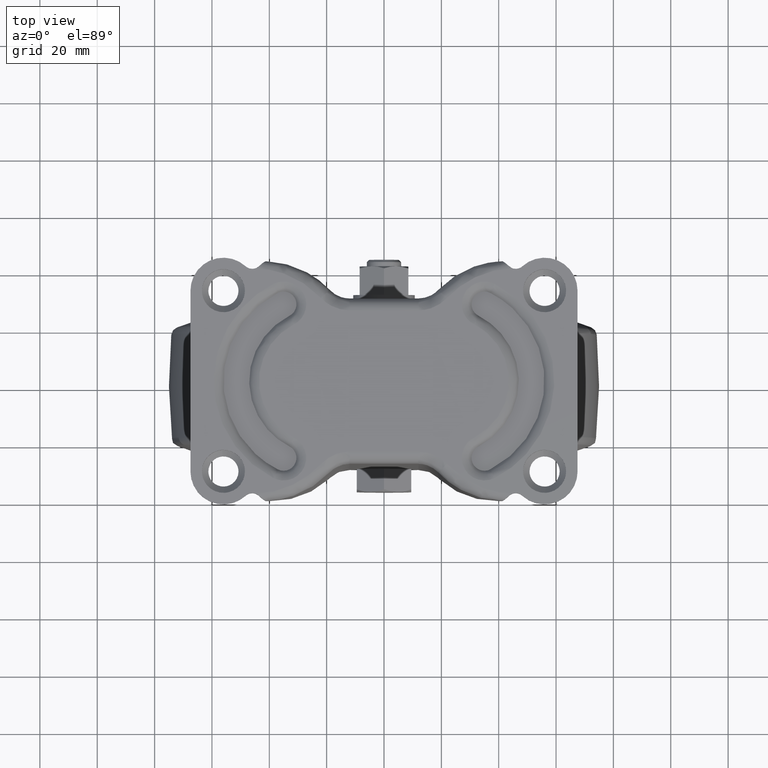
[diagram: clean part render]
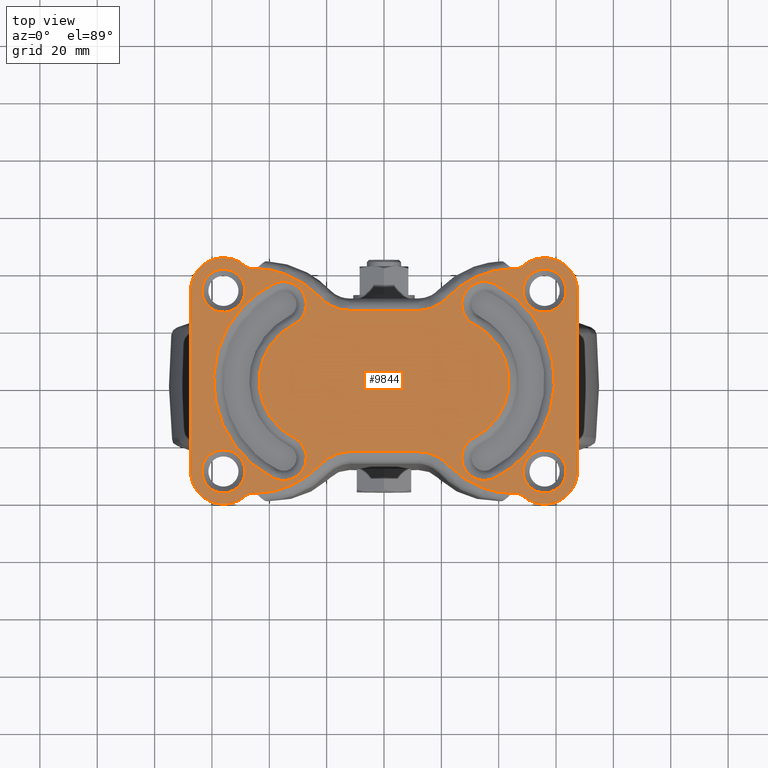
[diagram: same view with one face highlighted and labeled with its STEP entity id]
A machine part, top view. The second image highlights one B-rep face of the part: STEP entity #9844.
In plain terms, the highlighted face is a freeform B-spline surface patch.
Its self-contained STEP definition (entity closure, byte-faithful):
#4229=CARTESIAN_POINT('',(-56.457864046915283,38.986010988139299,-5.204170E-017));
#4230=VERTEX_POINT('',#4229);
#4231=CARTESIAN_POINT('',(-48.500000000000000,31.500000000000000,0.0));
#4232=VERTEX_POINT('',#4231);
#4233=CARTESIAN_POINT('',(-56.457864046915262,38.986010988139299,0.0));
#4234=CARTESIAN_POINT('',(-56.229145724941908,39.0,0.0));
#4235=CARTESIAN_POINT('',(-56.0,39.0,0.0));
#4236=CARTESIAN_POINT('',(-48.500000000000014,39.0,0.0));
#4237=CARTESIAN_POINT('',(-48.500000000000000,31.500000000000000,0.0));
#4245=(BOUNDED_CURVE()B_SPLINE_CURVE(2,(#4233,#4234,#4235,#4236,#4237),.UNSPECIFIED.,.F.,.U.)B_SPLINE_CURVE_WITH_KNOTS((3,2,3),(0.239332962232660,0.250000000000000,0.500000000000000),.UNSPECIFIED.)CURVE()GEOMETRIC_REPRESENTATION_ITEM()RATIONAL_B_SPLINE_CURVE((0.976072041653252,0.987502787892476,1.0,0.707106781186547,1.0))REPRESENTATION_ITEM(''));
#4246=EDGE_CURVE('',#4230,#4232,#4245,.T.);
#4255=CARTESIAN_POINT('',(-55.542135953084717,24.013989011860701,-5.204170E-017));
#4256=VERTEX_POINT('',#4255);
#4262=CARTESIAN_POINT('',(-48.500000000000000,31.500000000000000,0.0));
#4263=CARTESIAN_POINT('',(-48.500000000000007,24.444704498588617,0.0));
#4264=CARTESIAN_POINT('',(-55.542135953084717,24.013989011860698,0.0));
#4272=(BOUNDED_CURVE()B_SPLINE_CURVE(2,(#4262,#4263,#4264),.UNSPECIFIED.,.F.,.U.)B_SPLINE_CURVE_WITH_KNOTS((3,3),(0.500000000000000,0.739332962232660),.UNSPECIFIED.)CURVE()GEOMETRIC_REPRESENTATION_ITEM()RATIONAL_B_SPLINE_CURVE((1.0,0.719603993294071,0.976072041653251))REPRESENTATION_ITEM(''));
#4273=EDGE_CURVE('',#4232,#4256,#4272,.T.);
#4296=CARTESIAN_POINT('',(-63.500000000000000,31.500000000000000,0.0));
#4297=VERTEX_POINT('',#4296);
#4298=CARTESIAN_POINT('',(-63.500000000000000,31.500000000000000,0.0));
#4299=CARTESIAN_POINT('',(-63.499999999999993,38.555295501411386,0.0));
#4300=CARTESIAN_POINT('',(-56.457864046915269,38.986010988139306,0.0));
#4308=(BOUNDED_CURVE()B_SPLINE_CURVE(2,(#4298,#4299,#4300),.UNSPECIFIED.,.F.,.U.)B_SPLINE_CURVE_WITH_KNOTS((3,3),(0.0,0.239332962232660),.UNSPECIFIED.)CURVE()GEOMETRIC_REPRESENTATION_ITEM()RATIONAL_B_SPLINE_CURVE((1.0,0.719603993294071,0.976072041653252))REPRESENTATION_ITEM(''));
#4309=EDGE_CURVE('',#4297,#4230,#4308,.T.);
#4311=CARTESIAN_POINT('',(-55.542135953084717,24.013989011860698,0.0));
#4312=CARTESIAN_POINT('',(-55.770854275058092,24.000000000000007,0.0));
#4313=CARTESIAN_POINT('',(-56.0,24.0,0.0));
#4314=CARTESIAN_POINT('',(-63.499999999999993,24.0,0.0));
#4315=CARTESIAN_POINT('',(-63.500000000000000,31.500000000000000,0.0));
#4323=(BOUNDED_CURVE()B_SPLINE_CURVE(2,(#4311,#4312,#4313,#4314,#4315),.UNSPECIFIED.,.F.,.U.)B_SPLINE_CURVE_WITH_KNOTS((3,2,3),(0.739332962232660,0.750000000000000,1.0),.UNSPECIFIED.)CURVE()GEOMETRIC_REPRESENTATION_ITEM()RATIONAL_B_SPLINE_CURVE((0.976072041653251,0.987502787892476,1.0,0.707106781186547,1.0))REPRESENTATION_ITEM(''));
#4324=EDGE_CURVE('',#4256,#4297,#4323,.T.);
#4351=CARTESIAN_POINT('',(-56.457864046915283,-24.013989011860701,-5.204170E-017));
#4352=VERTEX_POINT('',#4351);
#4353=CARTESIAN_POINT('',(-48.500000000000000,-31.500000000000000,0.0));
#4354=VERTEX_POINT('',#4353);
#4355=CARTESIAN_POINT('',(-56.457864046915262,-24.013989011860691,0.0));
#4356=CARTESIAN_POINT('',(-56.229145724941908,-23.999999999999993,0.0));
#4357=CARTESIAN_POINT('',(-56.0,-24.0,0.0));
#4358=CARTESIAN_POINT('',(-48.500000000000014,-24.0,0.0));
#4359=CARTESIAN_POINT('',(-48.500000000000000,-31.500000000000000,0.0));
#4367=(BOUNDED_CURVE()B_SPLINE_CURVE(2,(#4355,#4356,#4357,#4358,#4359),.UNSPECIFIED.,.F.,.U.)B_SPLINE_CURVE_WITH_KNOTS((3,2,3),(0.239332962232660,0.250000000000000,0.500000000000000),.UNSPECIFIED.)CURVE()GEOMETRIC_REPRESENTATION_ITEM()RATIONAL_B_SPLINE_CURVE((0.976072041653252,0.987502787892476,1.0,0.707106781186547,1.0))REPRESENTATION_ITEM(''));
#4368=EDGE_CURVE('',#4352,#4354,#4367,.T.);
#4377=CARTESIAN_POINT('',(-55.542135953084717,-38.986010988139299,-5.204170E-017));
#4378=VERTEX_POINT('',#4377);
#4384=CARTESIAN_POINT('',(-48.500000000000000,-31.500000000000000,0.0));
#4385=CARTESIAN_POINT('',(-48.500000000000007,-38.555295501411386,0.0));
#4386=CARTESIAN_POINT('',(-55.542135953084717,-38.986010988139313,0.0));
#4394=(BOUNDED_CURVE()B_SPLINE_CURVE(2,(#4384,#4385,#4386),.UNSPECIFIED.,.F.,.U.)B_SPLINE_CURVE_WITH_KNOTS((3,3),(0.500000000000000,0.739332962232660),.UNSPECIFIED.)CURVE()GEOMETRIC_REPRESENTATION_ITEM()RATIONAL_B_SPLINE_CURVE((1.0,0.719603993294071,0.976072041653251))REPRESENTATION_ITEM(''));
#4395=EDGE_CURVE('',#4354,#4378,#4394,.T.);
#4418=CARTESIAN_POINT('',(-63.500000000000000,-31.500000000000000,0.0));
#4419=VERTEX_POINT('',#4418);
#4420=CARTESIAN_POINT('',(-63.500000000000000,-31.500000000000000,0.0));
#4421=CARTESIAN_POINT('',(-63.499999999999993,-24.444704498588600,0.0));
#4422=CARTESIAN_POINT('',(-56.457864046915269,-24.013989011860705,0.0));
#4430=(BOUNDED_CURVE()B_SPLINE_CURVE(2,(#4420,#4421,#4422),.UNSPECIFIED.,.F.,.U.)B_SPLINE_CURVE_WITH_KNOTS((3,3),(0.0,0.239332962232660),.UNSPECIFIED.)CURVE()GEOMETRIC_REPRESENTATION_ITEM()RATIONAL_B_SPLINE_CURVE((1.0,0.719603993294071,0.976072041653252))REPRESENTATION_ITEM(''));
#4431=EDGE_CURVE('',#4419,#4352,#4430,.T.);
#4433=CARTESIAN_POINT('',(-55.542135953084738,-38.986010988139299,0.0));
#4434=CARTESIAN_POINT('',(-55.770854275058099,-39.0,0.0));
#4435=CARTESIAN_POINT('',(-56.0,-39.0,0.0));
#4436=CARTESIAN_POINT('',(-63.499999999999993,-39.0,0.0));
#4437=CARTESIAN_POINT('',(-63.500000000000000,-31.500000000000000,0.0));
#4445=(BOUNDED_CURVE()B_SPLINE_CURVE(2,(#4433,#4434,#4435,#4436,#4437),.UNSPECIFIED.,.F.,.U.)B_SPLINE_CURVE_WITH_KNOTS((3,2,3),(0.739332962232660,0.750000000000000,1.0),.UNSPECIFIED.)CURVE()GEOMETRIC_REPRESENTATION_ITEM()RATIONAL_B_SPLINE_CURVE((0.976072041653252,0.987502787892476,1.0,0.707106781186547,1.0))REPRESENTATION_ITEM(''));
#4446=EDGE_CURVE('',#4378,#4419,#4445,.T.);
#4473=CARTESIAN_POINT('',(55.542135953084717,-24.013989011860701,-5.204170E-017));
#4474=VERTEX_POINT('',#4473);
#4475=CARTESIAN_POINT('',(63.500000000000000,-31.500000000000000,0.0));
#4476=VERTEX_POINT('',#4475);
#4477=CARTESIAN_POINT('',(55.542135953084724,-24.013989011860694,0.0));
#4478=CARTESIAN_POINT('',(55.770854275058092,-23.999999999999993,0.0));
#4479=CARTESIAN_POINT('',(56.0,-24.0,0.0));
#4480=CARTESIAN_POINT('',(63.499999999999993,-24.0,0.0));
#4481=CARTESIAN_POINT('',(63.500000000000000,-31.500000000000000,0.0));
#4489=(BOUNDED_CURVE()B_SPLINE_CURVE(2,(#4477,#4478,#4479,#4480,#4481),.UNSPECIFIED.,.F.,.U.)B_SPLINE_CURVE_WITH_KNOTS((3,2,3),(0.239332962232660,0.250000000000000,0.500000000000000),.UNSPECIFIED.)CURVE()GEOMETRIC_REPRESENTATION_ITEM()RATIONAL_B_SPLINE_CURVE((0.976072041653252,0.987502787892477,1.0,0.707106781186547,1.0))REPRESENTATION_ITEM(''));
#4490=EDGE_CURVE('',#4474,#4476,#4489,.T.);
#4499=CARTESIAN_POINT('',(56.457864046915283,-38.986010988139299,-5.204170E-017));
#4500=VERTEX_POINT('',#4499);
#4506=CARTESIAN_POINT('',(63.500000000000000,-31.500000000000000,0.0));
#4507=CARTESIAN_POINT('',(63.499999999999993,-38.555295501411386,0.0));
#4508=CARTESIAN_POINT('',(56.457864046915269,-38.986010988139313,0.0));
#4516=(BOUNDED_CURVE()B_SPLINE_CURVE(2,(#4506,#4507,#4508),.UNSPECIFIED.,.F.,.U.)B_SPLINE_CURVE_WITH_KNOTS((3,3),(0.500000000000000,0.739332962232660),.UNSPECIFIED.)CURVE()GEOMETRIC_REPRESENTATION_ITEM()RATIONAL_B_SPLINE_CURVE((1.0,0.719603993294071,0.976072041653252))REPRESENTATION_ITEM(''));
#4517=EDGE_CURVE('',#4476,#4500,#4516,.T.);
#4540=CARTESIAN_POINT('',(48.500000000000000,-31.500000000000000,0.0));
#4541=VERTEX_POINT('',#4540);
#4542=CARTESIAN_POINT('',(48.500000000000000,-31.500000000000000,0.0));
#4543=CARTESIAN_POINT('',(48.500000000000000,-24.444704498588607,0.0));
#4544=CARTESIAN_POINT('',(55.542135953084724,-24.013989011860694,0.0));
#4552=(BOUNDED_CURVE()B_SPLINE_CURVE(2,(#4542,#4543,#4544),.UNSPECIFIED.,.F.,.U.)B_SPLINE_CURVE_WITH_KNOTS((3,3),(0.0,0.239332962232660),.UNSPECIFIED.)CURVE()GEOMETRIC_REPRESENTATION_ITEM()RATIONAL_B_SPLINE_CURVE((1.0,0.719603993294071,0.976072041653252))REPRESENTATION_ITEM(''));
#4553=EDGE_CURVE('',#4541,#4474,#4552,.T.);
#4555=CARTESIAN_POINT('',(56.457864046915269,-38.986010988139313,0.0));
#4556=CARTESIAN_POINT('',(56.229145724941901,-39.0,0.0));
#4557=CARTESIAN_POINT('',(56.0,-39.0,0.0));
#4558=CARTESIAN_POINT('',(48.500000000000014,-39.0,0.0));
#4559=CARTESIAN_POINT('',(48.500000000000000,-31.500000000000000,0.0));
#4567=(BOUNDED_CURVE()B_SPLINE_CURVE(2,(#4555,#4556,#4557,#4558,#4559),.UNSPECIFIED.,.F.,.U.)B_SPLINE_CURVE_WITH_KNOTS((3,2,3),(0.739332962232660,0.750000000000000,1.0),.UNSPECIFIED.)CURVE()GEOMETRIC_REPRESENTATION_ITEM()RATIONAL_B_SPLINE_CURVE((0.976072041653252,0.987502787892476,1.0,0.707106781186547,1.0))REPRESENTATION_ITEM(''));
#4568=EDGE_CURVE('',#4500,#4541,#4567,.T.);
#5520=CARTESIAN_POINT('',(38.597904086651248,33.852036572994798,0.0));
#5521=VERTEX_POINT('',#5520);
#5536=CARTESIAN_POINT('',(38.597904414851598,-33.852036407228148,0.0));
#5537=VERTEX_POINT('',#5536);
#5551=CARTESIAN_POINT('',(38.597904086651248,33.852036572994798,0.0));
#5552=CARTESIAN_POINT('',(40.737438983461409,32.771761432411580,0.0));
#5553=CARTESIAN_POINT('',(43.792038547172851,30.845406504930480,0.0));
#5554=CARTESIAN_POINT('',(48.195783619028333,27.100797456150961,0.0));
#5555=CARTESIAN_POINT('',(52.218056250892232,22.629444185472629,0.0));
#5556=CARTESIAN_POINT('',(55.556753403287260,17.096534355813759,0.0));
#5557=CARTESIAN_POINT('',(57.595041749251671,11.915170039499239,0.0));
#5558=CARTESIAN_POINT('',(58.906096501231431,6.958357607303317,0.0));
#5559=CARTESIAN_POINT('',(59.577399735363237,1.422081956859567,0.0));
#5560=CARTESIAN_POINT('',(59.297570792142920,-4.473998754264481,0.0));
#5561=CARTESIAN_POINT('',(58.161621403890038,-10.258816748276329,0.0));
#5562=CARTESIAN_POINT('',(56.129405471726429,-15.919341510662059,0.0));
#5563=CARTESIAN_POINT('',(53.156161150733659,-21.147276858756779,0.0));
#5564=CARTESIAN_POINT('',(49.842978025234608,-25.347244170708539,0.0));
#5565=CARTESIAN_POINT('',(46.422033084689957,-28.717612249901201,0.0));
#5566=CARTESIAN_POINT('',(42.693377498375384,-31.569723190233610,0.0));
#5567=CARTESIAN_POINT('',(39.959331153931743,-33.164451242880652,0.0));
#5568=CARTESIAN_POINT('',(38.597904414851598,-33.852036407228148,0.0));
#5569=B_SPLINE_CURVE_WITH_KNOTS('',3,(#5551,#5552,#5553,#5554,#5555,#5556,#5557,#5558,#5559,#5560,#5561,#5562,#5563,#5564,#5565,#5566,#5567,#5568),.UNSPECIFIED.,.F.,.U.,(4,1,1,1,1,1,1,1,1,1,1,1,1,1,1,4),(0.000000065528610,7.190307134927934,10.785501899514291,17.322250925833199,25.166337065745839,30.068869539515180,33.990927650497170,40.527631843100743,46.737414182553557,51.639894446265103,58.176642837547483,64.713370051545894,69.615934941943564,74.191592660483280,79.094175262546997,83.669807241727597),.UNSPECIFIED.);
#5570=EDGE_CURVE('',#5521,#5537,#5569,.T.);
#5600=CARTESIAN_POINT('',(31.452240329807651,-19.704379285813701,0.0));
#5601=VERTEX_POINT('',#5600);
#5615=CARTESIAN_POINT('',(38.597904414851598,-33.852036407228148,0.0));
#5616=CARTESIAN_POINT('',(37.758997862071617,-34.276650035591970,0.0));
#5617=CARTESIAN_POINT('',(36.401690965355733,-34.679955020097204,0.0));
#5618=CARTESIAN_POINT('',(34.222270830706883,-34.736529436752349,0.0));
#5619=CARTESIAN_POINT('',(32.586829636577107,-34.392693799674923,0.0));
#5620=CARTESIAN_POINT('',(30.993744593134380,-33.653500236117928,0.0));
#5621=CARTESIAN_POINT('',(29.904848020482689,-32.878876661104037,0.0));
#5622=CARTESIAN_POINT('',(28.853031943181701,-31.816994993812550,0.0));
#5623=CARTESIAN_POINT('',(28.095011576465939,-30.715375623238309,0.0));
#5624=CARTESIAN_POINT('',(27.421005693826132,-29.200690389911589,0.0));
#5625=CARTESIAN_POINT('',(27.070534285855150,-27.604396828985688,0.0));
#5626=CARTESIAN_POINT('',(27.101144438058881,-25.811950947069629,0.0));
#5627=CARTESIAN_POINT('',(27.458570176482841,-24.255345546237020,0.0));
#5628=CARTESIAN_POINT('',(28.205008239014141,-22.591935265466070,0.0));
#5629=CARTESIAN_POINT('',(29.473057930351739,-20.962739732370480,0.0));
#5630=CARTESIAN_POINT('',(30.757625642035599,-20.054882762278861,0.0));
#5631=CARTESIAN_POINT('',(31.452240329807651,-19.704379285813701,0.0));
#5632=B_SPLINE_CURVE_WITH_KNOTS('',3,(#5615,#5616,#5617,#5618,#5619,#5620,#5621,#5622,#5623,#5624,#5625,#5626,#5627,#5628,#5629,#5630,#5631),.UNSPECIFIED.,.F.,.U.,(4,1,1,1,1,1,1,1,1,1,1,1,1,1,4),(0.000000650257256,2.820355079282585,4.181918416847676,6.516020665222367,7.780384418943818,9.433614108043573,10.503363206852679,12.253985127626750,13.421057077990110,15.463378653390251,17.116611454531220,18.769951041071671,20.228802466229361,22.562939760193370,24.896992175682371),.UNSPECIFIED.);
#5633=EDGE_CURVE('',#5537,#5601,#5632,.T.);
#5662=CARTESIAN_POINT('',(31.452239941177400,19.704379482101899,0.0));
#5663=VERTEX_POINT('',#5662);
#5664=CARTESIAN_POINT('',(31.452239941177400,19.704379482101899,0.0));
#5665=CARTESIAN_POINT('',(30.960295786280909,19.952762502331591,0.0));
#5666=CARTESIAN_POINT('',(30.028569478100401,20.552754876944299,0.0));
#5667=CARTESIAN_POINT('',(28.870664070819050,21.699586613043611,0.0));
#5668=CARTESIAN_POINT('',(27.895312585281431,23.163499097311728,0.0));
#5669=CARTESIAN_POINT('',(27.283946214596860,24.784467591132579,0.0));
#5670=CARTESIAN_POINT('',(27.075837957120822,26.334181151592539,0.0));
#5671=CARTESIAN_POINT('',(27.125665774939979,27.893024533766940,0.0));
#5672=CARTESIAN_POINT('',(27.466125335939630,29.357509476693789,0.0));
#5673=CARTESIAN_POINT('',(28.177820749561420,30.856510722481659,0.0));
#5674=CARTESIAN_POINT('',(29.228964979371540,32.307400690100188,0.0));
#5675=CARTESIAN_POINT('',(30.769590659763431,33.584051889590597,0.0));
#5676=CARTESIAN_POINT('',(32.532621285149091,34.362339953110833,0.0));
#5677=CARTESIAN_POINT('',(34.252096302484027,34.723851941007723,0.0));
#5678=CARTESIAN_POINT('',(36.277159868798726,34.721349618999241,0.0));
#5679=CARTESIAN_POINT('',(37.787904863368396,34.261825245741512,0.0));
#5680=CARTESIAN_POINT('',(38.597904086651248,33.852036572994798,0.0));
#5681=B_SPLINE_CURVE_WITH_KNOTS('',3,(#5664,#5665,#5666,#5667,#5668,#5669,#5670,#5671,#5672,#5673,#5674,#5675,#5676,#5677,#5678,#5679,#5680),.UNSPECIFIED.,.F.,.U.,(4,1,1,1,1,1,1,1,1,1,1,1,1,1,4),(0.000000781589939,1.653271058415324,3.306616954388606,4.862664190585708,6.905051523892752,8.461098240312097,9.530964110784300,11.573238288584999,12.934655525215470,14.490724198216780,16.922144612355250,18.867257634798801,20.228811013649409,22.173895326654979,24.896991351704411),.UNSPECIFIED.);
#5682=EDGE_CURVE('',#5663,#5521,#5681,.T.);
#5727=CARTESIAN_POINT('',(31.452240329807651,-19.704379285813701,0.0));
#5728=CARTESIAN_POINT('',(32.357905133967037,-19.246978322426180,0.0));
#5729=CARTESIAN_POINT('',(34.379210361111781,-18.044584996227218,0.0));
#5730=CARTESIAN_POINT('',(36.968871306719912,-15.880741759825121,0.0));
#5731=CARTESIAN_POINT('',(39.053174027540159,-13.481362278667920,0.0));
#5732=CARTESIAN_POINT('',(40.679490821378479,-11.054199477496720,0.0));
#5733=CARTESIAN_POINT('',(41.839302625553657,-8.719462936531336,0.0));
#5734=CARTESIAN_POINT('',(42.814338426237342,-5.966679222792449,0.0));
#5735=CARTESIAN_POINT('',(43.385435777809988,-3.357046945811054,0.0));
#5736=CARTESIAN_POINT('',(43.634670155865997,-0.318618464222600,0.0));
#5737=CARTESIAN_POINT('',(43.463384183157999,3.301666566485751,0.0));
#5738=CARTESIAN_POINT('',(42.518922070161253,7.211266215232127,0.0));
#5739=CARTESIAN_POINT('',(40.641110116371088,11.250044373268199,0.0));
#5740=CARTESIAN_POINT('',(38.454039576985437,14.310289894127470,0.0));
#5741=CARTESIAN_POINT('',(35.374878636227614,17.343833424645300,0.0));
#5742=CARTESIAN_POINT('',(33.037383640037092,18.904265894294731,0.0));
#5743=CARTESIAN_POINT('',(31.452239941177400,19.704379482101899,0.0));
#5744=B_SPLINE_CURVE_WITH_KNOTS('',3,(#5727,#5728,#5729,#5730,#5731,#5732,#5733,#5734,#5735,#5736,#5737,#5738,#5739,#5740,#5741,#5742,#5743),.UNSPECIFIED.,.F.,.U.,(4,1,1,1,1,1,1,1,1,1,1,1,1,1,4),(0.000000242567019,3.043863790968814,7.038921827800586,10.082827459234670,12.555985929068040,15.790138572760480,17.882770749721459,21.307211117276761,23.780334652603010,27.014377529062511,32.150881524986602,35.765520882428383,40.331361709295919,43.375233318887268,48.701992445577687),.UNSPECIFIED.);
#5745=EDGE_CURVE('',#5601,#5663,#5744,.T.);
#5773=CARTESIAN_POINT('',(-31.452239935293200,-19.704379554226250,0.0));
#5774=VERTEX_POINT('',#5773);
#5788=CARTESIAN_POINT('',(-31.452239941177400,19.704379482101849,0.0));
#5789=VERTEX_POINT('',#5788);
#5790=CARTESIAN_POINT('',(-31.452239941177400,19.704379482101849,0.0));
#5791=CARTESIAN_POINT('',(-33.207287475596388,18.818654659326029,0.0));
#5792=CARTESIAN_POINT('',(-36.002857670793780,16.899516285072380,0.0));
#5793=CARTESIAN_POINT('',(-39.357319993913549,13.234193098727880,0.0));
#5794=CARTESIAN_POINT('',(-41.353124455035022,9.894333056299674,0.0));
#5795=CARTESIAN_POINT('',(-42.595227529222463,6.696469825229639,0.0));
#5796=CARTESIAN_POINT('',(-43.383407558050017,3.552929448099639,0.0));
#5797=CARTESIAN_POINT('',(-43.684981195785383,0.062533688550539,0.0));
#5798=CARTESIAN_POINT('',(-43.378282775397707,-3.486105730672184,0.0));
#5799=CARTESIAN_POINT('',(-42.601490908547440,-6.764294336074835,0.0));
#5800=CARTESIAN_POINT('',(-41.434915994133782,-9.655539014678320,0.0));
#5801=CARTESIAN_POINT('',(-39.840898600554610,-12.403147511813881,0.0));
#5802=CARTESIAN_POINT('',(-38.127142109043312,-14.614539898570840,0.0));
#5803=CARTESIAN_POINT('',(-35.424120460192853,-17.300834222206550,0.0));
#5804=CARTESIAN_POINT('',(-33.150675898245062,-18.847224749286660,0.0));
#5805=CARTESIAN_POINT('',(-31.452239935293200,-19.704379554226250,0.0));
#5806=B_SPLINE_CURVE_WITH_KNOTS('',3,(#5790,#5791,#5792,#5793,#5794,#5795,#5796,#5797,#5798,#5799,#5800,#5801,#5802,#5803,#5804,#5805),.UNSPECIFIED.,.F.,.U.,(4,1,1,1,1,1,1,1,1,1,1,1,1,4),(0.000000265194451,5.897468876386121,10.082827575109951,14.838897396140240,17.502332541003010,20.355914999691169,24.541152376579319,27.965515488163540,31.009417618213408,34.624059033024103,37.287469140458157,40.521621845525061,42.994792523607593,48.701992918871220),.UNSPECIFIED.);
#5807=EDGE_CURVE('',#5789,#5774,#5806,.T.);
#5850=CARTESIAN_POINT('',(-38.597904058823012,33.852036517897801,0.0));
#5851=VERTEX_POINT('',#5850);
#5852=CARTESIAN_POINT('',(-38.597904058823012,33.852036517897801,0.0));
#5853=CARTESIAN_POINT('',(-37.932484697422240,34.188414369570772,0.0));
#5854=CARTESIAN_POINT('',(-36.505840909715353,34.671281044913641,0.0));
#5855=CARTESIAN_POINT('',(-34.477892411268179,34.761246479083972,0.0));
#5856=CARTESIAN_POINT('',(-32.656268050672622,34.401326599320562,0.0));
#5857=CARTESIAN_POINT('',(-31.276523807682260,33.812079612481540,0.0));
#5858=CARTESIAN_POINT('',(-29.896807987251581,32.892987572708691,0.0));
#5859=CARTESIAN_POINT('',(-28.608485864822111,31.592636454633350,0.0));
#5860=CARTESIAN_POINT('',(-27.680393101627651,29.935816479616712,0.0));
#5861=CARTESIAN_POINT('',(-27.188911429997759,28.248843010402229,0.0));
#5862=CARTESIAN_POINT('',(-27.061210814903550,26.885909566023390,0.0));
#5863=CARTESIAN_POINT('',(-27.183323500434540,25.331100184207980,0.0));
#5864=CARTESIAN_POINT('',(-27.659808707735070,23.599001998447889,0.0));
#5865=CARTESIAN_POINT('',(-28.634738174108762,21.967376799587370,0.0));
#5866=CARTESIAN_POINT('',(-29.951127945912472,20.615034609855702,0.0));
#5867=CARTESIAN_POINT('',(-30.873426180774089,19.996532208027372,0.0));
#5868=CARTESIAN_POINT('',(-31.452239941177400,19.704379482101849,0.0));
#5869=B_SPLINE_CURVE_WITH_KNOTS('',3,(#5852,#5853,#5854,#5855,#5856,#5857,#5858,#5859,#5860,#5861,#5862,#5863,#5864,#5865,#5866,#5867,#5868),.UNSPECIFIED.,.F.,.U.,(4,1,1,1,1,1,1,1,1,1,1,1,1,1,4),(0.000000650270238,2.236787539081153,4.473685907141785,6.029748575323264,7.780384161353094,8.947338947134830,10.989647932338761,13.226548932332321,14.588134521139001,16.241468392966180,17.311098483650181,19.256239815282189,21.590363392991868,22.951929570338091,24.896991351456670),.UNSPECIFIED.);
#5870=EDGE_CURVE('',#5851,#5789,#5869,.T.);
#5914=CARTESIAN_POINT('',(-38.597904584616799,-33.852036252331352,0.0));
#5915=VERTEX_POINT('',#5914);
#5929=CARTESIAN_POINT('',(-31.452239935293200,-19.704379554226250,0.0));
#5930=CARTESIAN_POINT('',(-30.612622980791080,-20.127572509174740,0.0));
#5931=CARTESIAN_POINT('',(-29.456155678840879,-21.000437922178101,0.0));
#5932=CARTESIAN_POINT('',(-28.107171100921921,-22.755896073116201,0.0));
#5933=CARTESIAN_POINT('',(-27.312823390419329,-24.554414655912719,0.0));
#5934=CARTESIAN_POINT('',(-27.021541198164311,-26.626111930922381,0.0));
#5935=CARTESIAN_POINT('',(-27.235001914184739,-28.638425384583890,0.0));
#5936=CARTESIAN_POINT('',(-27.898456130188549,-30.416085988290959,0.0));
#5937=CARTESIAN_POINT('',(-28.850923556370979,-31.818159348069731,0.0));
#5938=CARTESIAN_POINT('',(-29.903642707760731,-32.881008170092571,0.0));
#5939=CARTESIAN_POINT('',(-30.943294005208720,-33.611030804417531,0.0));
#5940=CARTESIAN_POINT('',(-32.315986825972267,-34.278832698588850,0.0));
#5941=CARTESIAN_POINT('',(-33.704958460096357,-34.652021076804012,0.0));
#5942=CARTESIAN_POINT('',(-35.263781489589761,-34.735867296010980,0.0));
#5943=CARTESIAN_POINT('',(-36.848178043236338,-34.558016006866147,0.0));
#5944=CARTESIAN_POINT('',(-37.961403710270062,-34.173820012063921,0.0));
#5945=CARTESIAN_POINT('',(-38.597904584616799,-33.852036252331352,0.0));
#5946=B_SPLINE_CURVE_WITH_KNOTS('',3,(#5929,#5930,#5931,#5932,#5933,#5934,#5935,#5936,#5937,#5938,#5939,#5940,#5941,#5942,#5943,#5944,#5945),.UNSPECIFIED.,.F.,.U.,(4,1,1,1,1,1,1,1,1,1,1,1,1,1,4),(0.000000650211703,2.820355045933336,4.279175207107219,6.613331756931110,8.655523728427479,10.503363082763000,12.643007484284571,14.296334755460190,15.560703725055189,17.116611252327171,18.089172865049228,20.131535524259629,21.395863424776081,22.757428593233062,24.896991881617531),.UNSPECIFIED.);
#5947=EDGE_CURVE('',#5774,#5915,#5946,.T.);
#5976=CARTESIAN_POINT('',(-38.597904584616799,-33.852036252331352,0.0));
#5977=CARTESIAN_POINT('',(-40.737410246385451,-32.771713866995810,0.0));
#5978=CARTESIAN_POINT('',(-43.792067919221360,-30.845450676401470,0.0));
#5979=CARTESIAN_POINT('',(-48.195790948024609,-27.100790548207769,0.0));
#5980=CARTESIAN_POINT('',(-51.559736952483348,-23.361050527732239,0.0));
#5981=CARTESIAN_POINT('',(-54.198880421878378,-19.347343895774710,0.0));
#5982=CARTESIAN_POINT('',(-56.557710824440733,-14.798246755389879,0.0));
#5983=CARTESIAN_POINT('',(-58.385294353652803,-9.638304735226068,0.0));
#5984=CARTESIAN_POINT('',(-59.329048181394157,-3.924255005348289,0.0));
#5985=CARTESIAN_POINT('',(-59.513347512041122,1.417995894598123,0.0));
#5986=CARTESIAN_POINT('',(-59.059094754142002,5.986403948320252,0.0));
#5987=CARTESIAN_POINT('',(-57.873857850657487,11.085744514569690,0.0));
#5988=CARTESIAN_POINT('',(-56.285783376650542,15.391690994048551,0.0));
#5989=CARTESIAN_POINT('',(-53.988205050689317,19.731237970702121,0.0));
#5990=CARTESIAN_POINT('',(-51.325676379120843,23.596064248248489,0.0));
#5991=CARTESIAN_POINT('',(-47.820290319179122,27.493331838346560,0.0));
#5992=CARTESIAN_POINT('',(-43.528453762303457,31.048243324454869,0.0));
#5993=CARTESIAN_POINT('',(-40.251102486669623,33.017132032601992,0.0));
#5994=CARTESIAN_POINT('',(-38.597904058823012,33.852036517897801,0.0));
#5995=B_SPLINE_CURVE_WITH_KNOTS('',3,(#5976,#5977,#5978,#5979,#5980,#5981,#5982,#5983,#5984,#5985,#5986,#5987,#5988,#5989,#5990,#5991,#5992,#5993,#5994),.UNSPECIFIED.,.F.,.U.,(4,1,1,1,1,1,1,1,1,1,1,1,1,1,1,1,4),(0.000000042973937,7.190307093389791,10.785501848484120,17.322250857542631,22.224802572504711,25.166336976745111,32.683531600611147,38.566648179795919,42.488531138037850,48.698364572970597,52.293577918606672,58.176642661398027,62.425520092518482,67.001234119218552,72.230630496179117,78.113612789534869,83.669806998011467),.UNSPECIFIED.);
#5996=EDGE_CURVE('',#5915,#5851,#5995,.T.);
#6139=CARTESIAN_POINT('',(-45.286515062644199,39.193457646801853,0.0));
#6140=VERTEX_POINT('',#6139);
#6160=CARTESIAN_POINT('',(-21.962988814587352,28.933892902993652,0.0));
#6161=VERTEX_POINT('',#6160);
#6162=CARTESIAN_POINT('',(-21.962988814587352,28.933892902993652,0.0));
#6163=CARTESIAN_POINT('',(-22.949987896272020,29.975119883583648,0.0));
#6164=CARTESIAN_POINT('',(-24.993756801069939,31.898372876360771,0.0));
#6165=CARTESIAN_POINT('',(-28.472291037960840,34.447372334859132,0.0));
#6166=CARTESIAN_POINT('',(-31.658726204864479,36.186098061404820,0.0));
#6167=CARTESIAN_POINT('',(-34.498640659220719,37.368885578357293,0.0));
#6168=CARTESIAN_POINT('',(-37.031399063497702,38.203486139783173,0.0));
#6169=CARTESIAN_POINT('',(-40.636545012743198,39.014767343340317,0.0));
#6170=CARTESIAN_POINT('',(-43.510505984521217,39.223157040847667,0.0));
#6171=CARTESIAN_POINT('',(-45.286515062644199,39.193457646801853,0.0));
#6172=B_SPLINE_CURVE_WITH_KNOTS('',3,(#6162,#6163,#6164,#6165,#6166,#6167,#6168,#6169,#6170,#6171),.UNSPECIFIED.,.F.,.U.,(4,1,1,1,1,1,1,4),(-0.000008232997946,4.304340034004291,8.403585816864499,12.912818351449520,15.167430012806021,17.627023951754030,20.906415227138059,26.235500857581560),.UNSPECIFIED.);
#6173=EDGE_CURVE('',#6161,#6140,#6172,.T.);
#6268=CARTESIAN_POINT('',(-11.998855098554341,24.650000000047651,0.0));
#6269=VERTEX_POINT('',#6268);
#6270=CARTESIAN_POINT('',(-11.998855098554341,24.650000000047701,0.0));
#6271=CARTESIAN_POINT('',(-17.901811766308210,24.650000000047694,0.0));
#6272=CARTESIAN_POINT('',(-21.962988814587330,28.933892902993669,0.0));
#6280=(BOUNDED_CURVE()B_SPLINE_CURVE(2,(#6270,#6271,#6272),.UNSPECIFIED.,.F.,.U.)CURVE()GEOMETRIC_REPRESENTATION_ITEM()QUASI_UNIFORM_CURVE()RATIONAL_B_SPLINE_CURVE((1.0,0.918692092121067,1.0))REPRESENTATION_ITEM(''));
#6281=EDGE_CURVE('',#6269,#6161,#6280,.T.);
#6328=CARTESIAN_POINT('',(11.998857618558160,24.650000999952351,0.0));
#6329=VERTEX_POINT('',#6328);
#6330=CARTESIAN_POINT('',(11.998857618558160,24.650000999952351,0.0));
#6331=CARTESIAN_POINT('',(-11.998855098554341,24.650000000047651,0.0));
#6332=QUASI_UNIFORM_CURVE('',1,(#6330,#6331),.UNSPECIFIED.,.F.,.U.);
#6333=EDGE_CURVE('',#6329,#6269,#6332,.T.);
#6376=CARTESIAN_POINT('',(21.962990449121101,28.933893572325399,0.0));
#6377=VERTEX_POINT('',#6376);
#6378=CARTESIAN_POINT('',(21.962990449121090,28.933893572325410,0.0));
#6379=CARTESIAN_POINT('',(17.901813677544510,24.650001245908875,0.0));
#6380=CARTESIAN_POINT('',(11.998857618558169,24.650000999952368,0.0));
#6388=(BOUNDED_CURVE()B_SPLINE_CURVE(2,(#6378,#6379,#6380),.UNSPECIFIED.,.F.,.U.)CURVE()GEOMETRIC_REPRESENTATION_ITEM()QUASI_UNIFORM_CURVE()RATIONAL_B_SPLINE_CURVE((1.0,0.918692106901595,1.0))REPRESENTATION_ITEM(''));
#6389=EDGE_CURVE('',#6377,#6329,#6388,.T.);
#6849=CARTESIAN_POINT('',(45.286516270299799,39.193457607020399,0.0));
#6850=VERTEX_POINT('',#6849);
#6851=CARTESIAN_POINT('',(45.286516270299799,39.193457607020399,0.0));
#6852=CARTESIAN_POINT('',(43.920313283318507,39.216038085563603,0.0));
#6853=CARTESIAN_POINT('',(41.457997329965927,39.088954015989160,0.0));
#6854=CARTESIAN_POINT('',(38.090988385518891,38.480336064162373,0.0));
#6855=CARTESIAN_POINT('',(35.136301430829803,37.617563547280177,0.0));
#6856=CARTESIAN_POINT('',(32.280072180818443,36.469998771690868,0.0));
#6857=CARTESIAN_POINT('',(29.671288710667259,35.111001065341561,0.0));
#6858=CARTESIAN_POINT('',(27.022225723035810,33.415625918748148,0.0));
#6859=CARTESIAN_POINT('',(24.487475542574231,31.436467968160649,0.0));
#6860=CARTESIAN_POINT('',(22.762043301632421,29.776777592984221,0.0));
#6861=CARTESIAN_POINT('',(21.962990449121101,28.933893572325399,0.0));
#6862=B_SPLINE_CURVE_WITH_KNOTS('',3,(#6851,#6852,#6853,#6854,#6855,#6856,#6857,#6858,#6859,#6860,#6861),.UNSPECIFIED.,.F.,.U.,(4,1,1,1,1,1,1,1,4),(0.000027209319114,4.099335715454821,7.378733587929890,10.248188196508620,13.322691785025929,16.602146396227379,19.061693195279599,22.751049770045789,26.235493437468751),.UNSPECIFIED.);
#6863=EDGE_CURVE('',#6850,#6377,#6862,.T.);
#7074=CARTESIAN_POINT('',(45.286516311112202,-39.193457599201800,0.0));
#7075=VERTEX_POINT('',#7074);
#7095=CARTESIAN_POINT('',(21.962990449121101,-28.933893572325399,0.0));
#7096=VERTEX_POINT('',#7095);
#7097=CARTESIAN_POINT('',(21.962990449121101,-28.933893572325399,0.0));
#7098=CARTESIAN_POINT('',(22.762033035696909,-29.776770286841391,0.0));
#7099=CARTESIAN_POINT('',(24.487488183714550,-31.436431188893248,0.0));
#7100=CARTESIAN_POINT('',(27.130132707747109,-33.499770940469261,0.0));
#7101=CARTESIAN_POINT('',(29.790468911632999,-35.178930885163297,0.0));
#7102=CARTESIAN_POINT('',(32.407052975531833,-36.520985684404337,0.0));
#7103=CARTESIAN_POINT('',(35.263211199403393,-37.668724539232947,0.0));
#7104=CARTESIAN_POINT('',(38.356396411835959,-38.549195222707873,0.0));
#7105=CARTESIAN_POINT('',(41.731738546917612,-39.109767808237443,0.0));
#7106=CARTESIAN_POINT('',(44.056924435434993,-39.213735582128614,0.0));
#7107=CARTESIAN_POINT('',(45.286516311112202,-39.193457599201800,0.0));
#7108=B_SPLINE_CURVE_WITH_KNOTS('',3,(#7097,#7098,#7099,#7100,#7101,#7102,#7103,#7104,#7105,#7106,#7107),.UNSPECIFIED.,.F.,.U.,(4,1,1,1,1,1,1,1,4),(-0.000008233003800,3.484408627557482,7.173776899164558,10.043283777523961,12.912818001795960,15.987325516466729,19.266719945263340,22.546111045161918,26.235500147188699),.UNSPECIFIED.);
#7109=EDGE_CURVE('',#7096,#7075,#7108,.T.);
#7204=CARTESIAN_POINT('',(11.998857618558160,-24.650000999952351,0.0));
#7205=VERTEX_POINT('',#7204);
#7206=CARTESIAN_POINT('',(11.998857618558160,-24.650000999952368,0.0));
#7207=CARTESIAN_POINT('',(17.901813677544510,-24.650001245908875,0.0));
#7208=CARTESIAN_POINT('',(21.962990449121090,-28.933893572325410,0.0));
#7216=(BOUNDED_CURVE()B_SPLINE_CURVE(2,(#7206,#7207,#7208),.UNSPECIFIED.,.F.,.U.)CURVE()GEOMETRIC_REPRESENTATION_ITEM()QUASI_UNIFORM_CURVE()RATIONAL_B_SPLINE_CURVE((1.0,0.918692106901595,1.0))REPRESENTATION_ITEM(''));
#7217=EDGE_CURVE('',#7205,#7096,#7216,.T.);
#7265=CARTESIAN_POINT('',(-11.998855098554341,-24.650000000047651,0.0));
#7266=VERTEX_POINT('',#7265);
#7267=CARTESIAN_POINT('',(-11.998855098554341,-24.650000000047651,0.0));
#7268=CARTESIAN_POINT('',(11.998857618558160,-24.650000999952351,0.0));
#7269=QUASI_UNIFORM_CURVE('',1,(#7267,#7268),.UNSPECIFIED.,.F.,.U.);
#7270=EDGE_CURVE('',#7266,#7205,#7269,.T.);
#7313=CARTESIAN_POINT('',(-21.962988814587298,-28.933892902993598,0.0));
#7314=VERTEX_POINT('',#7313);
#7315=CARTESIAN_POINT('',(-21.962988814587280,-28.933892902993609,0.0));
#7316=CARTESIAN_POINT('',(-17.901811766308175,-24.650000000047697,0.0));
#7317=CARTESIAN_POINT('',(-11.998855098554341,-24.650000000047701,0.0));
#7325=(BOUNDED_CURVE()B_SPLINE_CURVE(2,(#7315,#7316,#7317),.UNSPECIFIED.,.F.,.U.)CURVE()GEOMETRIC_REPRESENTATION_ITEM()QUASI_UNIFORM_CURVE()RATIONAL_B_SPLINE_CURVE((1.0,0.918692092121069,1.0))REPRESENTATION_ITEM(''));
#7326=EDGE_CURVE('',#7314,#7266,#7325,.T.);
#7769=CARTESIAN_POINT('',(-45.286515021836401,-39.193457654619600,0.0));
#7770=VERTEX_POINT('',#7769);
#7771=CARTESIAN_POINT('',(-45.286515021836401,-39.193457654619600,0.0));
#7772=CARTESIAN_POINT('',(-43.920331315240922,-39.216028486388417,0.0));
#7773=CARTESIAN_POINT('',(-41.457955283789460,-39.088971412864908,0.0));
#7774=CARTESIAN_POINT('',(-38.360367577521693,-38.528997139339843,0.0));
#7775=CARTESIAN_POINT('',(-35.395432096741338,-37.708394104302947,0.0));
#7776=CARTESIAN_POINT('',(-33.033367733045829,-36.794061450013423,0.0));
#7777=CARTESIAN_POINT('',(-30.393432530267820,-35.503068031201977,0.0));
#7778=CARTESIAN_POINT('',(-28.152281678336330,-34.185838568990782,0.0));
#7779=CARTESIAN_POINT('',(-25.103649960999672,-31.982884009359889,0.0));
#7780=CARTESIAN_POINT('',(-23.137766876058571,-30.173474038302690,0.0));
#7781=CARTESIAN_POINT('',(-21.962988814587298,-28.933892902993598,0.0));
#7782=B_SPLINE_CURVE_WITH_KNOTS('',3,(#7771,#7772,#7773,#7774,#7775,#7776,#7777,#7778,#7779,#7780,#7781),.UNSPECIFIED.,.F.,.U.,(4,1,1,1,1,1,1,1,4),(0.000027209310183,4.099335826451512,7.378733787722190,9.428376994307332,13.322692145767251,14.962448377475660,18.241856611848650,21.111376964993418,26.235494147863658),.UNSPECIFIED.);
#7783=EDGE_CURVE('',#7770,#7314,#7782,.T.);
#8952=CARTESIAN_POINT('',(-67.500000000000000,-31.500000000000000,0.0));
#8953=VERTEX_POINT('',#8952);
#8954=CARTESIAN_POINT('',(-48.291204069349803,-40.033726102470453,0.0));
#8955=VERTEX_POINT('',#8954);
#8956=CARTESIAN_POINT('',(-67.500000000000000,-31.500000000000000,0.0));
#8957=CARTESIAN_POINT('',(-67.500188806408232,-32.397557754171892,0.0));
#8958=CARTESIAN_POINT('',(-67.325305362424785,-33.881890217203193,0.0));
#8959=CARTESIAN_POINT('',(-66.711312616162388,-35.793863455531273,0.0));
#8960=CARTESIAN_POINT('',(-65.966560836783785,-37.316991428804322,0.0));
#8961=CARTESIAN_POINT('',(-64.971165522555680,-38.775490784277750,0.0));
#8962=CARTESIAN_POINT('',(-63.489770833219687,-40.331288607108753,0.0));
#8963=CARTESIAN_POINT('',(-61.748517473132253,-41.540971004878678,0.0));
#8964=CARTESIAN_POINT('',(-59.787360520646132,-42.412096855097673,0.0));
#8965=CARTESIAN_POINT('',(-58.177866108702823,-42.833328611698711,0.0));
#8966=CARTESIAN_POINT('',(-56.219513636238332,-43.053448035456192,0.0));
#8967=CARTESIAN_POINT('',(-54.346355186559343,-42.950798578873624,0.0));
#8968=CARTESIAN_POINT('',(-52.162355404563307,-42.407415596418531,0.0));
#8969=CARTESIAN_POINT('',(-50.169402044348942,-41.507911632392350,0.0));
#8970=CARTESIAN_POINT('',(-48.880321997277662,-40.566026225927757,0.0));
#8971=CARTESIAN_POINT('',(-48.291204069349803,-40.033726102470453,0.0));
#8972=B_SPLINE_CURVE_WITH_KNOTS('',3,(#8956,#8957,#8958,#8959,#8960,#8961,#8962,#8963,#8964,#8965,#8966,#8967,#8968,#8969,#8970,#8971),.UNSPECIFIED.,.F.,.U.,(4,1,1,1,1,1,1,1,1,1,1,1,1,4),(0.000000649397951,2.692630346296181,4.453293840690382,6.006794524125070,7.767433125860169,9.735214079246081,12.427956665179369,14.084808017508699,16.156207900845200,17.398964621781651,19.988137416212719,21.748782503491789,24.130832795248370,26.512762129161601),.UNSPECIFIED.);
#8973=EDGE_CURVE('',#8953,#8955,#8972,.T.);
#9030=CARTESIAN_POINT('',(-45.286515021836387,-39.193457654619557,0.0));
#9031=CARTESIAN_POINT('',(-46.998044850322081,-38.865572842929005,0.0));
#9032=CARTESIAN_POINT('',(-48.291204069349803,-40.033726102470439,0.0));
#9040=(BOUNDED_CURVE()B_SPLINE_CURVE(2,(#9030,#9031,#9032),.UNSPECIFIED.,.F.,.U.)CURVE()GEOMETRIC_REPRESENTATION_ITEM()QUASI_UNIFORM_CURVE()RATIONAL_B_SPLINE_CURVE((1.0,0.895177472579751,1.0))REPRESENTATION_ITEM(''));
#9041=EDGE_CURVE('',#7770,#8955,#9040,.T.);
#9177=CARTESIAN_POINT('',(48.291204772136602,-40.033725806168647,0.0));
#9178=VERTEX_POINT('',#9177);
#9179=CARTESIAN_POINT('',(48.291204772136602,-40.033725806168647,0.0));
#9180=CARTESIAN_POINT('',(46.998045729824376,-38.865573015330000,0.0));
#9181=CARTESIAN_POINT('',(45.286516311112209,-39.193457599201821,0.0));
#9189=(BOUNDED_CURVE()B_SPLINE_CURVE(2,(#9179,#9180,#9181),.UNSPECIFIED.,.F.,.U.)CURVE()GEOMETRIC_REPRESENTATION_ITEM()QUASI_UNIFORM_CURVE()RATIONAL_B_SPLINE_CURVE((1.0,0.895177518023511,1.0))REPRESENTATION_ITEM(''));
#9190=EDGE_CURVE('',#9178,#7075,#9189,.T.);
#9258=CARTESIAN_POINT('',(67.500000000000000,-31.500000000000000,0.0));
#9259=VERTEX_POINT('',#9258);
#9260=CARTESIAN_POINT('',(48.291204772136602,-40.033725806168647,0.0));
#9261=CARTESIAN_POINT('',(48.957134704113663,-40.635493851831278,0.0));
#9262=CARTESIAN_POINT('',(50.515853197041338,-41.742399753654603,0.0));
#9263=CARTESIAN_POINT('',(52.885447163608639,-42.661470783642152,0.0));
#9264=CARTESIAN_POINT('',(55.040349409963952,-43.005050413272059,0.0));
#9265=CARTESIAN_POINT('',(56.978583173416332,-43.015225469849597,0.0));
#9266=CARTESIAN_POINT('',(58.997243890749559,-42.677233469660067,0.0));
#9267=CARTESIAN_POINT('',(61.009678723954273,-41.920770369650917,0.0));
#9268=CARTESIAN_POINT('',(62.585002883451068,-40.977163304478680,0.0));
#9269=CARTESIAN_POINT('',(64.059518014083778,-39.775752259185573,0.0));
#9270=CARTESIAN_POINT('',(65.325324264051631,-38.346876870289748,0.0));
#9271=CARTESIAN_POINT('',(66.386673087686745,-36.559292423244067,0.0));
#9272=CARTESIAN_POINT('',(67.249252809703250,-34.330528465777107,0.0));
#9273=CARTESIAN_POINT('',(67.500502921869128,-32.604754138401390,0.0));
#9274=CARTESIAN_POINT('',(67.500000000000000,-31.500000000000000,0.0));
#9275=B_SPLINE_CURVE_WITH_KNOTS('',3,(#9260,#9261,#9262,#9263,#9264,#9265,#9266,#9267,#9268,#9269,#9270,#9271,#9272,#9273,#9274),.UNSPECIFIED.,.F.,.U.,(4,1,1,1,1,1,1,1,1,1,1,1,4),(0.000000386141775,2.692630077137363,5.696089089228515,7.560299117811741,9.217340392563948,11.495849452250329,13.670573338117780,15.638310412602120,16.984704998103080,19.366741778655751,21.334514897540650,23.198691047014041,26.512761804709619),.UNSPECIFIED.);
#9276=EDGE_CURVE('',#9178,#9259,#9275,.T.);
#9312=CARTESIAN_POINT('',(67.500000000000000,31.500000000000000,0.0));
#9313=VERTEX_POINT('',#9312);
#9314=CARTESIAN_POINT('',(67.500000000000000,31.500000000000000,0.0));
#9315=CARTESIAN_POINT('',(67.500000000000000,-31.500000000000000,0.0));
#9316=QUASI_UNIFORM_CURVE('',1,(#9314,#9315),.UNSPECIFIED.,.F.,.U.);
#9317=EDGE_CURVE('',#9313,#9259,#9316,.T.);
#9353=CARTESIAN_POINT('',(48.291205069349687,40.033726102470403,0.0));
#9354=VERTEX_POINT('',#9353);
#9355=CARTESIAN_POINT('',(67.500000000000000,31.500000000000000,0.0));
#9356=CARTESIAN_POINT('',(67.500643485427076,32.708332132161438,0.0));
#9357=CARTESIAN_POINT('',(67.181445851084092,34.710185724849246,0.0));
#9358=CARTESIAN_POINT('',(66.150956435283987,37.024812844663849,0.0));
#9359=CARTESIAN_POINT('',(65.053867294549804,38.663784753992971,0.0));
#9360=CARTESIAN_POINT('',(63.928792413229928,39.888583877563427,0.0));
#9361=CARTESIAN_POINT('',(62.340991880476452,41.170725604205110,0.0));
#9362=CARTESIAN_POINT('',(60.540506225538287,42.152356453201207,0.0));
#9363=CARTESIAN_POINT('',(58.618516690687443,42.739261938825827,0.0));
#9364=CARTESIAN_POINT('',(56.533503325724638,43.059842342724913,0.0));
#9365=CARTESIAN_POINT('',(54.411158996036882,42.981779287788967,0.0));
#9366=CARTESIAN_POINT('',(51.962168559948772,42.348897147282997,0.0));
#9367=CARTESIAN_POINT('',(49.992334952524843,41.395012324515257,0.0));
#9368=CARTESIAN_POINT('',(48.777896975363959,40.473401468229689,0.0));
#9369=CARTESIAN_POINT('',(48.291205069349687,40.033726102470403,0.0));
#9370=B_SPLINE_CURVE_WITH_KNOTS('',3,(#9355,#9356,#9357,#9358,#9359,#9360,#9361,#9362,#9363,#9364,#9365,#9366,#9367,#9368,#9369),.UNSPECIFIED.,.F.,.U.,(4,1,1,1,1,1,1,1,1,1,1,1,4),(0.000000393660585,3.624775326208209,6.006794158544473,7.560299003654247,9.528080299531833,10.977959899581339,13.670573125617411,15.638310168430751,16.984704732260258,19.988136794963761,21.955914715126220,24.545087612686189,26.512761385581669),.UNSPECIFIED.);
#9371=EDGE_CURVE('',#9313,#9354,#9370,.T.);
#9424=CARTESIAN_POINT('',(45.286516270299799,39.193457607020420,0.0));
#9425=CARTESIAN_POINT('',(46.998045967455674,38.865572948739690,0.0));
#9426=CARTESIAN_POINT('',(48.291205069349722,40.033726102470368,0.0));
#9434=(BOUNDED_CURVE()B_SPLINE_CURVE(2,(#9424,#9425,#9426),.UNSPECIFIED.,.F.,.U.)CURVE()GEOMETRIC_REPRESENTATION_ITEM()QUASI_UNIFORM_CURVE()RATIONAL_B_SPLINE_CURVE((1.0,0.895177488687821,1.0))REPRESENTATION_ITEM(''));
#9435=EDGE_CURVE('',#6850,#9354,#9434,.T.);
#9571=CARTESIAN_POINT('',(-48.291204772136503,40.033725806168597,0.0));
#9572=VERTEX_POINT('',#9571);
#9573=CARTESIAN_POINT('',(-48.291204772136503,40.033725806168597,0.0));
#9574=CARTESIAN_POINT('',(-46.998045067431285,38.865572822400445,0.0));
#9575=CARTESIAN_POINT('',(-45.286515062644199,39.193457646801853,0.0));
#9583=(BOUNDED_CURVE()B_SPLINE_CURVE(2,(#9573,#9574,#9575),.UNSPECIFIED.,.F.,.U.)CURVE()GEOMETRIC_REPRESENTATION_ITEM()QUASI_UNIFORM_CURVE()RATIONAL_B_SPLINE_CURVE((1.0,0.895177454665899,1.0))REPRESENTATION_ITEM(''));
#9584=EDGE_CURVE('',#9572,#6140,#9583,.T.);
#9652=CARTESIAN_POINT('',(-67.500000000000000,31.500000000000000,0.0));
#9653=VERTEX_POINT('',#9652);
#9654=CARTESIAN_POINT('',(-48.291204772136503,40.033725806168597,0.0));
#9655=CARTESIAN_POINT('',(-48.854710015750989,40.542876746482762,0.0));
#9656=CARTESIAN_POINT('',(-49.943541868308998,41.345944268686097,0.0));
#9657=CARTESIAN_POINT('',(-51.867038433441067,42.298939475764392,0.0));
#9658=CARTESIAN_POINT('',(-54.101943505050741,42.941476357637640,0.0));
#9659=CARTESIAN_POINT('',(-56.428547065441400,43.068870900550372,0.0));
#9660=CARTESIAN_POINT('',(-58.655997329126002,42.747109883789470,0.0));
#9661=CARTESIAN_POINT('',(-60.436637127916171,42.167860332442800,0.0));
#9662=CARTESIAN_POINT('',(-62.093426634692761,41.302881161315653,0.0));
#9663=CARTESIAN_POINT('',(-63.828521490909992,40.038948947413779,0.0));
#9664=CARTESIAN_POINT('',(-65.344388000610621,38.358584075891187,0.0));
#9665=CARTESIAN_POINT('',(-66.407453467156529,36.491791110198577,0.0));
#9666=CARTESIAN_POINT('',(-67.244013037166027,34.330461114383517,0.0));
#9667=CARTESIAN_POINT('',(-67.500656439307122,32.673828714358372,0.0));
#9668=CARTESIAN_POINT('',(-67.500000000000000,31.500000000000000,0.0));
#9669=B_SPLINE_CURVE_WITH_KNOTS('',3,(#9654,#9655,#9656,#9657,#9658,#9659,#9660,#9661,#9662,#9663,#9664,#9665,#9666,#9667,#9668),.UNSPECIFIED.,.F.,.U.,(4,1,1,1,1,1,1,1,1,1,1,1,4),(0.000000385907853,2.278361284962696,4.039032437584556,6.421060988834260,9.217340392421860,10.977960068622901,13.152922280137860,14.809814774030110,16.570451844633428,19.573874045430191,21.541648767850781,22.991565392520702,26.512761804710479),.UNSPECIFIED.);
#9670=EDGE_CURVE('',#9572,#9653,#9669,.T.);
#9706=CARTESIAN_POINT('',(-67.500000000000000,-31.500000000000000,0.0));
#9707=CARTESIAN_POINT('',(-67.500000000000000,31.500000000000000,0.0));
#9708=QUASI_UNIFORM_CURVE('',1,(#9706,#9707),.UNSPECIFIED.,.F.,.U.);
#9709=EDGE_CURVE('',#8953,#9653,#9708,.T.);
#9721=CARTESIAN_POINT('',(-74.243249738343820,47.288461530242898,0.0));
#9722=CARTESIAN_POINT('',(74.243253359325976,47.288461530242898,0.0));
#9723=CARTESIAN_POINT('',(-74.243249738343820,-47.288459224113787,0.0));
#9724=CARTESIAN_POINT('',(74.243253359325976,-47.288459224113787,0.0));
#9725=B_SPLINE_SURFACE_WITH_KNOTS('',1,1,((#9721,#9723),(#9722,#9724)),.UNSPECIFIED.,.F.,.F.,.U.,(2,2),(2,2),(0.0,148.486503097669810),(0.0,94.576920754356692),.UNSPECIFIED.);
#9726=ORIENTED_EDGE('',*,*,#9041,.F.);
#9727=ORIENTED_EDGE('',*,*,#7783,.T.);
#9728=ORIENTED_EDGE('',*,*,#7326,.T.);
#9729=ORIENTED_EDGE('',*,*,#7270,.T.);
#9730=ORIENTED_EDGE('',*,*,#7217,.T.);
#9731=ORIENTED_EDGE('',*,*,#7109,.T.);
#9732=ORIENTED_EDGE('',*,*,#9190,.F.);
#9733=ORIENTED_EDGE('',*,*,#9276,.T.);
#9734=ORIENTED_EDGE('',*,*,#9317,.F.);
#9735=ORIENTED_EDGE('',*,*,#9371,.T.);
#9736=ORIENTED_EDGE('',*,*,#9435,.F.);
#9737=ORIENTED_EDGE('',*,*,#6863,.T.);
#9738=ORIENTED_EDGE('',*,*,#6389,.T.);
#9739=ORIENTED_EDGE('',*,*,#6333,.T.);
#9740=ORIENTED_EDGE('',*,*,#6281,.T.);
#9741=ORIENTED_EDGE('',*,*,#6173,.T.);
#9742=ORIENTED_EDGE('',*,*,#9584,.F.);
#9743=ORIENTED_EDGE('',*,*,#9670,.T.);
#9744=ORIENTED_EDGE('',*,*,#9709,.F.);
#9745=ORIENTED_EDGE('',*,*,#8973,.T.);
#9746=EDGE_LOOP('',(#9726,#9727,#9728,#9729,#9730,#9731,#9732,#9733,#9734,#9735,#9736,#9737,#9738,#9739,#9740,#9741,#9742,#9743,#9744,#9745));
#9747=FACE_OUTER_BOUND('',#9746,.T.);
#9748=ORIENTED_EDGE('',*,*,#5633,.T.);
#9749=ORIENTED_EDGE('',*,*,#5745,.T.);
#9750=ORIENTED_EDGE('',*,*,#5682,.T.);
#9751=ORIENTED_EDGE('',*,*,#5570,.T.);
#9752=EDGE_LOOP('',(#9748,#9749,#9750,#9751));
#9753=FACE_BOUND('',#9752,.T.);
#9754=ORIENTED_EDGE('',*,*,#5947,.T.);
#9755=ORIENTED_EDGE('',*,*,#5996,.T.);
#9756=ORIENTED_EDGE('',*,*,#5870,.T.);
#9757=ORIENTED_EDGE('',*,*,#5807,.T.);
#9758=EDGE_LOOP('',(#9754,#9755,#9756,#9757));
#9759=FACE_BOUND('',#9758,.T.);
#9760=ORIENTED_EDGE('',*,*,#4517,.T.);
#9761=ORIENTED_EDGE('',*,*,#4568,.T.);
#9762=ORIENTED_EDGE('',*,*,#4553,.T.);
#9763=ORIENTED_EDGE('',*,*,#4490,.T.);
#9764=EDGE_LOOP('',(#9760,#9761,#9762,#9763));
#9765=FACE_BOUND('',#9764,.T.);
#9766=CARTESIAN_POINT('',(63.500000000000000,31.500000000000000,0.0));
#9767=VERTEX_POINT('',#9766);
#9768=CARTESIAN_POINT('',(56.457864046915283,24.013989011860701,-5.204170E-017));
#9769=VERTEX_POINT('',#9768);
#9770=CARTESIAN_POINT('',(63.500000000000000,31.500000000000000,0.0));
#9771=CARTESIAN_POINT('',(63.499999999999993,24.444704498588614,0.0));
#9772=CARTESIAN_POINT('',(56.457864046915269,24.013989011860694,0.0));
#9780=(BOUNDED_CURVE()B_SPLINE_CURVE(2,(#9770,#9771,#9772),.UNSPECIFIED.,.F.,.U.)B_SPLINE_CURVE_WITH_KNOTS((3,3),(0.500000000000000,0.739332962232660),.UNSPECIFIED.)CURVE()GEOMETRIC_REPRESENTATION_ITEM()RATIONAL_B_SPLINE_CURVE((1.0,0.719603993294071,0.976072041653252))REPRESENTATION_ITEM(''));
#9781=EDGE_CURVE('',#9767,#9769,#9780,.T.);
#9782=ORIENTED_EDGE('',*,*,#9781,.T.);
#9783=CARTESIAN_POINT('',(48.500000000000000,31.500000000000000,0.0));
#9784=VERTEX_POINT('',#9783);
#9785=CARTESIAN_POINT('',(56.457864046915269,24.013989011860694,0.0));
#9786=CARTESIAN_POINT('',(56.229145724941901,23.999999999999996,0.0));
#9787=CARTESIAN_POINT('',(56.0,24.0,0.0));
#9788=CARTESIAN_POINT('',(48.500000000000014,24.0,0.0));
#9789=CARTESIAN_POINT('',(48.500000000000000,31.500000000000000,0.0));
#9797=(BOUNDED_CURVE()B_SPLINE_CURVE(2,(#9785,#9786,#9787,#9788,#9789),.UNSPECIFIED.,.F.,.U.)B_SPLINE_CURVE_WITH_KNOTS((3,2,3),(0.739332962232660,0.750000000000000,1.0),.UNSPECIFIED.)CURVE()GEOMETRIC_REPRESENTATION_ITEM()RATIONAL_B_SPLINE_CURVE((0.976072041653252,0.987502787892476,1.0,0.707106781186547,1.0))REPRESENTATION_ITEM(''));
#9798=EDGE_CURVE('',#9769,#9784,#9797,.T.);
#9799=ORIENTED_EDGE('',*,*,#9798,.T.);
#9800=CARTESIAN_POINT('',(55.542135953084717,38.986010988139299,-5.204170E-017));
#9801=VERTEX_POINT('',#9800);
#9802=CARTESIAN_POINT('',(48.500000000000000,31.500000000000000,0.0));
#9803=CARTESIAN_POINT('',(48.500000000000000,38.555295501411386,0.0));
#9804=CARTESIAN_POINT('',(55.542135953084724,38.986010988139313,0.0));
#9812=(BOUNDED_CURVE()B_SPLINE_CURVE(2,(#9802,#9803,#9804),.UNSPECIFIED.,.F.,.U.)B_SPLINE_CURVE_WITH_KNOTS((3,3),(0.0,0.239332962232660),.UNSPECIFIED.)CURVE()GEOMETRIC_REPRESENTATION_ITEM()RATIONAL_B_SPLINE_CURVE((1.0,0.719603993294071,0.976072041653252))REPRESENTATION_ITEM(''));
#9813=EDGE_CURVE('',#9784,#9801,#9812,.T.);
#9814=ORIENTED_EDGE('',*,*,#9813,.T.);
#9815=CARTESIAN_POINT('',(55.542135953084724,38.986010988139313,0.0));
#9816=CARTESIAN_POINT('',(55.770854275058092,39.0,0.0));
#9817=CARTESIAN_POINT('',(56.0,39.0,0.0));
#9818=CARTESIAN_POINT('',(63.499999999999993,39.0,0.0));
#9819=CARTESIAN_POINT('',(63.500000000000000,31.500000000000000,0.0));
#9827=(BOUNDED_CURVE()B_SPLINE_CURVE(2,(#9815,#9816,#9817,#9818,#9819),.UNSPECIFIED.,.F.,.U.)B_SPLINE_CURVE_WITH_KNOTS((3,2,3),(0.239332962232660,0.250000000000000,0.500000000000000),.UNSPECIFIED.)CURVE()GEOMETRIC_REPRESENTATION_ITEM()RATIONAL_B_SPLINE_CURVE((0.976072041653252,0.987502787892476,1.0,0.707106781186547,1.0))REPRESENTATION_ITEM(''));
#9828=EDGE_CURVE('',#9801,#9767,#9827,.T.);
#9829=ORIENTED_EDGE('',*,*,#9828,.T.);
#9830=EDGE_LOOP('',(#9782,#9799,#9814,#9829));
#9831=FACE_BOUND('',#9830,.T.);
#9832=ORIENTED_EDGE('',*,*,#4395,.T.);
#9833=ORIENTED_EDGE('',*,*,#4446,.T.);
#9834=ORIENTED_EDGE('',*,*,#4431,.T.);
#9835=ORIENTED_EDGE('',*,*,#4368,.T.);
#9836=EDGE_LOOP('',(#9832,#9833,#9834,#9835));
#9837=FACE_BOUND('',#9836,.T.);
#9838=ORIENTED_EDGE('',*,*,#4273,.T.);
#9839=ORIENTED_EDGE('',*,*,#4324,.T.);
#9840=ORIENTED_EDGE('',*,*,#4309,.T.);
#9841=ORIENTED_EDGE('',*,*,#4246,.T.);
#9842=EDGE_LOOP('',(#9838,#9839,#9840,#9841));
#9843=FACE_BOUND('',#9842,.T.);
#9844=ADVANCED_FACE('',(#9747,#9753,#9759,#9765,#9831,#9837,#9843),#9725,.F.);